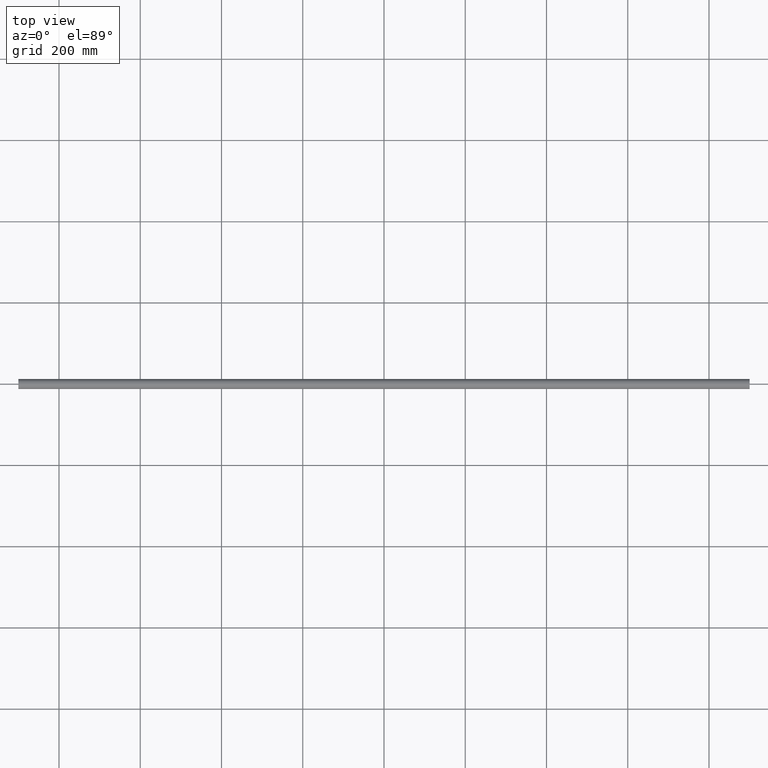
[diagram: clean part render]
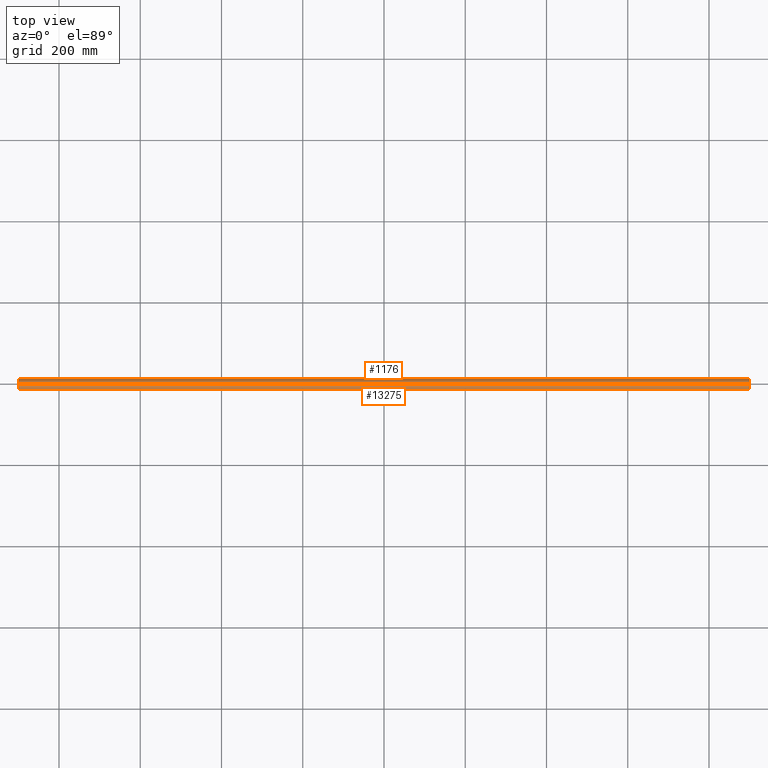
[diagram: same view with one multi-face feature highlighted, each face labeled with its STEP entity id]
A machine part, top view. The highlighted faces form ONE feature: a constant-radius fillet chain: 2 tangent blend faces with common blend radius 12.5 mm. The faces share edges in the B-rep.
Their STEP definitions:
[1] entity #13275 (Cylinder):
#15 = CARTESIAN_POINT ( 'NONE',  ( 0.8849586188828737500, -3.290362799234787700, -12.05925230465092600 ) ) ;
#76 = CARTESIAN_POINT ( 'NONE',  ( 2.562011329120410100, -2.246229744202106200, -12.29756642919713400 ) ) ;
#129 = CARTESIAN_POINT ( 'NONE',  ( -3.377732997452065800, -0.4476042234037471700, -12.49389134214153300 ) ) ;
#174 = CARTESIAN_POINT ( 'NONE',  ( 2.701931776855453800, -2.075686207071248300, -12.32785800513539200 ) ) ;
#231 = VERTEX_POINT ( 'NONE', #8184 ) ;
#285 = CARTESIAN_POINT ( 'NONE',  ( 3.377728582763545300, -0.4482571319650705500, -12.49388896063694400 ) ) ;
#344 = CARTESIAN_POINT ( 'NONE',  ( 732.5620113291202000, -2.246229744202054700, -12.29756642919714300 ) ) ;
#640 = CARTESIAN_POINT ( 'NONE',  ( -900.0000000000000000, 1.530808498934191500E-015, -12.50000000000000000 ) ) ;
#809 = CARTESIAN_POINT ( 'NONE',  ( 900.0000000000000000, 1.530808498934191500E-015, -12.50000000000000000 ) ) ;
#906 = DIRECTION ( 'NONE',  ( 0.0000000000000000000, 0.0000000000000000000, -1.000000000000000000 ) ) ;
#1103 = CARTESIAN_POINT ( 'NONE',  ( -730.8851843544657600, -3.290386587176774100, -12.05924650855003400 ) ) ;
#1252 = CARTESIAN_POINT ( 'NONE',  ( -733.2906811211503300, -0.8836557597777396900, -12.47063843226399300 ) ) ;
#1278 = CARTESIAN_POINT ( 'NONE',  ( -2.949123524426438900, -1.706430297025205400, -12.38438124661080900 ) ) ;
#1293 = ORIENTED_EDGE ( 'NONE', *, *, #6596, .F. ) ;
#1322 = CARTESIAN_POINT ( 'NONE',  ( 3.225220202861461600, -1.098761744103564400, -12.45332302889326600 ) ) ;
#1351 = CARTESIAN_POINT ( 'NONE',  ( -728.9025609335543500, -3.225774224939494900, -12.07692960344454000 ) ) ;
#1377 = CARTESIAN_POINT ( 'NONE',  ( 0.4480069142262588200, -3.377710602246548200, -12.03507891894723200 ) ) ;
#1411 = CARTESIAN_POINT ( 'NONE',  ( -729.1150413811170700, -3.290362799234757100, -12.05925230465093600 ) ) ;
#1433 = CARTESIAN_POINT ( 'NONE',  ( 2.948053334667987400, -1.708183272649644400, -12.38412960736629600 ) ) ;
#1540 = CARTESIAN_POINT ( 'NONE',  ( 733.2252202028612400, -1.098761744103555300, -12.45332302889326900 ) ) ;
#1602 = DIRECTION ( 'NONE',  ( 1.000000000000000000, 0.0000000000000000000, 0.0000000000000000000 ) ) ;
#1793 = ORIENTED_EDGE ( 'NONE', *, *, #6848, .T. ) ;
#1867 = B_SPLINE_CURVE_WITH_KNOTS ( 'NONE', 3,
 ( #13689, #4974, #5187, #8705, #13640, #8910, #5129, #6248, #7507, #6358, #10103, #15045, #13803, #8755, #14924, #2698, #6422, #7672, #9887, #6536, #15209, #6480, #2814, #344, #13979, #5236, #15155, #1540, #7724, #3988, #15102, #2868 ),
 .UNSPECIFIED., .F., .F.,
 ( 4, 2, 2, 2, 2, 2, 2, 2, 2, 2, 2, 2, 2, 2, 2, 4 ),
 ( 1.197015388918840900E-017, 0.0006675304755107222200, 0.001335060951021432500, 0.002002591426532143100, 0.002670121902042853300, 0.003337652377553563000, 0.004005182853064274100, 0.004672713328574984300, 0.005340243804085694500, 0.006007774279596404600, 0.006675304755107113900, 0.008010365706128837900, 0.008677896181639699000, 0.009345426657150558400, 0.01001295713266142100, 0.01068048760817228200 ),
 .UNSPECIFIED. ) ;
#1936 = ORIENTED_EDGE ( 'NONE', *, *, #8121, .F. ) ;
#2304 = VECTOR ( 'NONE', #3664, 1000.000000000000000 ) ;
#2558 = CARTESIAN_POINT ( 'NONE',  ( -731.5092891430319900, -3.054671048340733100, -12.12133177702797600 ) ) ;
#2672 = CARTESIAN_POINT ( 'NONE',  ( -726.6000000000000200, -0.2225510969395910800, -12.49999999999999800 ) ) ;
#2698 = CARTESIAN_POINT ( 'NONE',  ( 729.5542347389150600, -3.378089484675302700, -12.03497327294810600 ) ) ;
#2814 = CARTESIAN_POINT ( 'NONE',  ( 732.0904125409244900, -2.718083123427828400, -12.20511272832640500 ) ) ;
#2841 = CARTESIAN_POINT ( 'NONE',  ( -726.7747797971383100, -1.098761744103555300, -12.45332302889326900 ) ) ;
#2868 = CARTESIAN_POINT ( 'NONE',  ( 733.3999999999999800, 1.530817147818667500E-015, -12.50000000000000000 ) ) ;
#2905 = CARTESIAN_POINT ( 'NONE',  ( -726.6000000000000200, 1.530817147831289300E-015, -12.50000000000000000 ) ) ;
#3058 = CARTESIAN_POINT ( 'NONE',  ( 3.399999999999992400, 1.530817148184698900E-015, -12.50000000000000000 ) ) ;
#3188 = ORIENTED_EDGE ( 'NONE', *, *, #4632, .F. ) ;
#3223 = LINE ( 'NONE', #12048, #9603 ) ;
#3272 = FACE_OUTER_BOUND ( 'NONE', #13066, .T. ) ;
#3380 = DIRECTION ( 'NONE',  ( -1.000000000000000000, -0.0000000000000000000, -0.0000000000000000000 ) ) ;
#3544 = VERTEX_POINT ( 'NONE', #6428 ) ;
#3610 = CARTESIAN_POINT ( 'NONE',  ( -729.7785291907567900, -3.400096623084107000, -12.02868833097944700 ) ) ;
#3634 = VECTOR ( 'NONE', #14297, 1000.000000000000000 ) ;
#3644 = ORIENTED_EDGE ( 'NONE', *, *, #13002, .T. ) ;
#3664 = DIRECTION ( 'NONE',  ( -1.000000000000000000, -0.0000000000000000000, -0.0000000000000000000 ) ) ;
#3726 = CARTESIAN_POINT ( 'NONE',  ( -2.559440054320829500, -2.248989797497627000, -12.29704468854004600 ) ) ;
#3814 = VERTEX_POINT ( 'NONE', #3058 ) ;
#3933 = LINE ( 'NONE', #13330, #12597 ) ;
#3988 = CARTESIAN_POINT ( 'NONE',  ( 733.3777285827636700, -0.4482571319650472400, -12.49388896063694300 ) ) ;
#4019 = CARTESIAN_POINT ( 'NONE',  ( -726.6000000000000200, 1.530817147831289300E-015, -12.50000000000000000 ) ) ;
#4074 = CARTESIAN_POINT ( 'NONE',  ( -726.9451166598310000, -1.508976641703934500, -12.41029900232306300 ) ) ;
#4266 = ORIENTED_EDGE ( 'NONE', *, *, #6315, .F. ) ;
#4572 = B_SPLINE_CURVE_WITH_KNOTS ( 'NONE', 3,
 ( #12274, #9870, #9919, #1252, #6125, #12319, #11151, #4999, #13612, #6228, #7487, #9970, #2558, #12422, #1103, #9767, #11005, #3610, #12217, #1411, #1351, #5211, #6336, #12472, #11430, #13836, #4074, #2841, #14954, #12524, #2672, #4019 ),
 .UNSPECIFIED., .F., .F.,
 ( 4, 2, 2, 2, 2, 2, 2, 2, 2, 2, 2, 2, 2, 2, 2, 4 ),
 ( 1.197015388918840900E-017, 0.0006675304755107222200, 0.001335060951021432500, 0.002002591426532143100, 0.002670121902042853300, 0.003337652377553563000, 0.004005182853064274100, 0.004672713328574984300, 0.005340243804085694500, 0.006007774279596404600, 0.006675304755107113900, 0.008010365706128837900, 0.008677896181639699000, 0.009345426657150558400, 0.01001295713266142100, 0.01068048760817228200 ),
 .UNSPECIFIED. ) ;
#4632 = EDGE_CURVE ( 'NONE', #5458, #13556, #6615, .T. ) ;
#4703 = VERTEX_POINT ( 'NONE', #640 ) ;
#4974 = CARTESIAN_POINT ( 'NONE',  ( 726.5999999999999100, -0.2257922536966986700, -12.50000000000000000 ) ) ;
#4999 = CARTESIAN_POINT ( 'NONE',  ( -732.7023275773590300, -2.075249282755358600, -12.32794158140094800 ) ) ;
#5129 = CARTESIAN_POINT ( 'NONE',  ( 727.0508764755735500, -1.706430297025199200, -12.38438124661081100 ) ) ;
#5187 = CARTESIAN_POINT ( 'NONE',  ( 726.6222670025478000, -0.4476042234037524400, -12.49389134214153300 ) ) ;
#5211 = CARTESIAN_POINT ( 'NONE',  ( -728.2830839163810900, -2.968529363370429100, -12.14369076542070200 ) ) ;
#5236 = CARTESIAN_POINT ( 'NONE',  ( 732.9480533346679700, -1.708183272649670600, -12.38412960736629600 ) ) ;
#5342 = DIRECTION ( 'NONE',  ( -1.000000000000000000, -0.0000000000000000000, -0.0000000000000000000 ) ) ;
#5401 = CARTESIAN_POINT ( 'NONE',  ( 900.0000000000000000, 0.0000000000000000000, 0.0000000000000000000 ) ) ;
#5458 = VERTEX_POINT ( 'NONE', #11856 ) ;
#5830 = DIRECTION ( 'NONE',  ( 1.000000000000000000, 0.0000000000000000000, 0.0000000000000000000 ) ) ;
#6125 = CARTESIAN_POINT ( 'NONE',  ( -733.2247705063500700, -1.100213052444112300, -12.45320411249670800 ) ) ;
#6192 = CARTESIAN_POINT ( 'NONE',  ( -1.100606476932582700, -3.224536294380884200, -12.07725403179794400 ) ) ;
#6228 = CARTESIAN_POINT ( 'NONE',  ( -732.2472831817783600, -2.560938656392412100, -12.23588396395595300 ) ) ;
#6248 = CARTESIAN_POINT ( 'NONE',  ( 727.2976724226413100, -2.075249282755358600, -12.32794158140094800 ) ) ;
#6315 = EDGE_CURVE ( 'NONE', #3544, #3814, #10249, .T. ) ;
#6336 = CARTESIAN_POINT ( 'NONE',  ( -727.9095874590755100, -2.718083123427828400, -12.20511272832640500 ) ) ;
#6356 = CARTESIAN_POINT ( 'NONE',  ( 0.2214708092432787200, -3.400096623084137600, -12.02868833097944000 ) ) ;
#6358 = CARTESIAN_POINT ( 'NONE',  ( 727.7527168182214200, -2.560938656392412100, -12.23588396395595300 ) ) ;
#6392 = VERTEX_POINT ( 'NONE', #8474 ) ;
#6422 = CARTESIAN_POINT ( 'NONE',  ( 729.7755723622541400, -3.399902734060280500, -12.02874313505274300 ) ) ;
#6428 = CARTESIAN_POINT ( 'NONE',  ( 726.6000000000000200, 1.240253457150525300E-014, -12.50000000000000000 ) ) ;
#6480 = CARTESIAN_POINT ( 'NONE',  ( 731.7169160836188000, -2.968529363370429100, -12.14369076542070200 ) ) ;
#6536 = CARTESIAN_POINT ( 'NONE',  ( 730.8849586188827100, -3.290362799234757100, -12.05925230465093600 ) ) ;
#6584 = CARTESIAN_POINT ( 'NONE',  ( 3.399999999999992400, 1.530817148184698900E-015, -12.50000000000000000 ) ) ;
#6596 = EDGE_CURVE ( 'NONE', #13556, #6852, #3933, .T. ) ;
#6615 = CIRCLE ( 'NONE', #10514, 12.50000000000000000 ) ;
#6848 = EDGE_CURVE ( 'NONE', #6392, #7459, #4572, .T. ) ;
#6852 = VERTEX_POINT ( 'NONE', #7431 ) ;
#7159 = DIRECTION ( 'NONE',  ( -1.000000000000000000, -0.0000000000000000000, -0.0000000000000000000 ) ) ;
#7262 = DIRECTION ( 'NONE',  ( -1.000000000000000000, -0.0000000000000000000, -0.0000000000000000000 ) ) ;
#7431 = CARTESIAN_POINT ( 'NONE',  ( 733.3999999999999800, 1.530817147818667500E-015, -12.50000000000000000 ) ) ;
#7451 = CARTESIAN_POINT ( 'NONE',  ( -3.224770506350074700, -1.100213052444125400, -12.45320411249670300 ) ) ;
#7459 = VERTEX_POINT ( 'NONE', #2905 ) ;
#7487 = CARTESIAN_POINT ( 'NONE',  ( -732.0767785535758800, -2.701278004671885800, -12.20530089315861700 ) ) ;
#7504 = CARTESIAN_POINT ( 'NONE',  ( 2.090412540924484000, -2.718083123427878200, -12.20511272832639600 ) ) ;
#7507 = CARTESIAN_POINT ( 'NONE',  ( 727.4405599456791800, -2.248989797497584800, -12.29704468854005300 ) ) ;
#7511 = AXIS2_PLACEMENT_3D ( 'NONE', #9625, #5830, #906 ) ;
#7581 = CARTESIAN_POINT ( 'NONE',  ( 900.0000000000000000, 1.530808498934191500E-015, -12.50000000000000000 ) ) ;
#7614 = CARTESIAN_POINT ( 'NONE',  ( -0.8851843544657870300, -3.290386587176843000, -12.05924650855002200 ) ) ;
#7672 = CARTESIAN_POINT ( 'NONE',  ( 730.2214708092431000, -3.400096623084107000, -12.02868833097944700 ) ) ;
#7724 = CARTESIAN_POINT ( 'NONE',  ( 733.2899460591241900, -0.8867016201782428300, -12.47044329820943000 ) ) ;
#7864 = EDGE_CURVE ( 'NONE', #8900, #7459, #12926, .T. ) ;
#8121 = EDGE_CURVE ( 'NONE', #6392, #4703, #15500, .T. ) ;
#8184 = CARTESIAN_POINT ( 'NONE',  ( -900.0000000000000000, 0.0000000000000000000, 12.50000000000000000 ) ) ;
#8474 = CARTESIAN_POINT ( 'NONE',  ( -733.3999999999999800, 1.240253457150525300E-014, -12.50000000000000000 ) ) ;
#8488 = CYLINDRICAL_SURFACE ( 'NONE', #15809, 12.50000000000000000 ) ;
#8686 = EDGE_CURVE ( 'NONE', #231, #4703, #9153, .T. ) ;
#8700 = CARTESIAN_POINT ( 'NONE',  ( -3.399999999999992400, -2.744008533087695100E-017, -12.50000000000000000 ) ) ;
#8705 = CARTESIAN_POINT ( 'NONE',  ( 726.7093188788493300, -0.8836557597777396900, -12.47063843226399300 ) ) ;
#8753 = CARTESIAN_POINT ( 'NONE',  ( 3.054883340169163700, -1.508976641703948500, -12.41029900232305900 ) ) ;
#8755 = CARTESIAN_POINT ( 'NONE',  ( 728.8993935230673700, -3.224536294380859300, -12.07725403179794700 ) ) ;
#8803 = CARTESIAN_POINT ( 'NONE',  ( -0.2244276377459091800, -3.399902734060317000, -12.02874313505273600 ) ) ;
#8813 = B_SPLINE_CURVE_WITH_KNOTS ( 'NONE', 3,
 ( #8700, #13635, #129, #12443, #7451, #11118, #1278, #14860, #3726, #13584, #14767, #12492, #10100, #6192, #7614, #14809, #8803, #6356, #1377, #15, #9942, #14979, #7504, #76, #174, #1433, #8753, #1322, #11399, #285, #15099, #6584 ),
 .UNSPECIFIED., .F., .F.,
 ( 4, 2, 2, 2, 2, 2, 2, 2, 2, 2, 2, 2, 2, 2, 2, 4 ),
 ( 1.010852188292129100E-019, 0.0006675304755107761000, 0.001335060951021552000, 0.002002591426532328300, 0.002670121902043104000, 0.003337652377553880100, 0.004005182853064656600, 0.004672713328575432700, 0.005340243804086207900, 0.006007774279596984000, 0.006675304755107760100, 0.008010365706129314900, 0.008677896181640089300, 0.009345426657150865400, 0.01001295713266164000, 0.01068048760817241400 ),
 .UNSPECIFIED. ) ;
#8900 = VERTEX_POINT ( 'NONE', #13795 ) ;
#8910 = CARTESIAN_POINT ( 'NONE',  ( 726.9463299890194300, -1.511526726006549200, -12.40999792042050500 ) ) ;
#9153 = CIRCLE ( 'NONE', #7511, 12.50000000000000000 ) ;
#9457 = VECTOR ( 'NONE', #3380, 1000.000000000000000 ) ;
#9603 = VECTOR ( 'NONE', #7159, 1000.000000000000000 ) ;
#9625 = CARTESIAN_POINT ( 'NONE',  ( -900.0000000000000000, 0.0000000000000000000, 0.0000000000000000000 ) ) ;
#9767 = CARTESIAN_POINT ( 'NONE',  ( -730.4457652610849400, -3.378089484675302700, -12.03497327294810600 ) ) ;
#9824 = CARTESIAN_POINT ( 'NONE',  ( 900.0000000000000000, 1.530808498934191500E-015, -12.50000000000000000 ) ) ;
#9870 = CARTESIAN_POINT ( 'NONE',  ( -733.4000000000000900, -0.2257922536966986700, -12.50000000000000000 ) ) ;
#9887 = CARTESIAN_POINT ( 'NONE',  ( 730.4480069142263100, -3.377710602246517100, -12.03507891894724400 ) ) ;
#9919 = CARTESIAN_POINT ( 'NONE',  ( -733.3777329974518600, -0.4476042234037524400, -12.49389134214153300 ) ) ;
#9942 = CARTESIAN_POINT ( 'NONE',  ( 1.097439066445788900, -3.225774224939502500, -12.07692960344454200 ) ) ;
#9970 = CARTESIAN_POINT ( 'NONE',  ( -731.7054526404524500, -2.949803944381664200, -12.14763061015492900 ) ) ;
#10061 = ORIENTED_EDGE ( 'NONE', *, *, #15952, .T. ) ;
#10100 = CARTESIAN_POINT ( 'NONE',  ( -1.509289143032031400, -3.054671048340752200, -12.12133177702796700 ) ) ;
#10103 = CARTESIAN_POINT ( 'NONE',  ( 727.9232214464243500, -2.701278004671885800, -12.20530089315861700 ) ) ;
#10249 = LINE ( 'NONE', #9824, #2304 ) ;
#10276 = DIRECTION ( 'NONE',  ( 0.0000000000000000000, 0.0000000000000000000, -1.000000000000000000 ) ) ;
#10514 = AXIS2_PLACEMENT_3D ( 'NONE', #15317, #1602, #10276 ) ;
#11005 = CARTESIAN_POINT ( 'NONE',  ( -730.2244276377458600, -3.399902734060280500, -12.02874313505274300 ) ) ;
#11118 = CARTESIAN_POINT ( 'NONE',  ( -3.053670010980493300, -1.511526726006569500, -12.40999792042050100 ) ) ;
#11151 = CARTESIAN_POINT ( 'NONE',  ( -732.9491235244265700, -1.706430297025199200, -12.38438124661081100 ) ) ;
#11251 = ORIENTED_EDGE ( 'NONE', *, *, #7864, .F. ) ;
#11399 = CARTESIAN_POINT ( 'NONE',  ( 3.289946059124467600, -0.8867016201782704800, -12.47044329820943000 ) ) ;
#11430 = CARTESIAN_POINT ( 'NONE',  ( -727.2980682231448100, -2.075686207071268300, -12.32785800513539000 ) ) ;
#11856 = CARTESIAN_POINT ( 'NONE',  ( 900.0000000000000000, 0.0000000000000000000, 12.50000000000000000 ) ) ;
#12048 = CARTESIAN_POINT ( 'NONE',  ( 900.0000000000000000, 0.0000000000000000000, 12.50000000000000000 ) ) ;
#12217 = CARTESIAN_POINT ( 'NONE',  ( -729.5519930857736900, -3.377710602246517100, -12.03507891894724400 ) ) ;
#12274 = CARTESIAN_POINT ( 'NONE',  ( -733.3999999999999800, 1.240253457150525300E-014, -12.50000000000000000 ) ) ;
#12319 = CARTESIAN_POINT ( 'NONE',  ( -733.0536700109806800, -1.511526726006549200, -12.40999792042050500 ) ) ;
#12422 = CARTESIAN_POINT ( 'NONE',  ( -731.1006064769324000, -3.224536294380859300, -12.07725403179794700 ) ) ;
#12443 = CARTESIAN_POINT ( 'NONE',  ( -3.290681121150606200, -0.8836557597777408000, -12.47063843226399100 ) ) ;
#12472 = CARTESIAN_POINT ( 'NONE',  ( -727.4379886708795800, -2.246229744202054700, -12.29756642919714300 ) ) ;
#12492 = CARTESIAN_POINT ( 'NONE',  ( -1.705452640452512500, -2.949803944381704600, -12.14763061015491600 ) ) ;
#12524 = CARTESIAN_POINT ( 'NONE',  ( -726.6222714172363300, -0.4482571319650472400, -12.49388896063694300 ) ) ;
#12558 = ORIENTED_EDGE ( 'NONE', *, *, #8686, .T. ) ;
#12597 = VECTOR ( 'NONE', #7262, 1000.000000000000000 ) ;
#12926 = LINE ( 'NONE', #809, #9457 ) ;
#12953 = CARTESIAN_POINT ( 'NONE',  ( 900.0000000000000000, 1.530808498934191500E-015, -12.50000000000000000 ) ) ;
#13002 = EDGE_CURVE ( 'NONE', #3544, #6852, #1867, .T. ) ;
#13066 = EDGE_LOOP ( 'NONE', ( #1293, #3188, #10061, #12558, #1936, #1793, #11251, #14020, #4266, #3644 ) ) ;
#13275 = ADVANCED_FACE ( 'NONE', ( #3272 ), #8488, .T. ) ;
#13330 = CARTESIAN_POINT ( 'NONE',  ( 900.0000000000000000, 1.530808498934191500E-015, -12.50000000000000000 ) ) ;
#13556 = VERTEX_POINT ( 'NONE', #7581 ) ;
#13584 = CARTESIAN_POINT ( 'NONE',  ( -2.247283181778619600, -2.560938656392455700, -12.23588396395593800 ) ) ;
#13612 = CARTESIAN_POINT ( 'NONE',  ( -732.5594400543210400, -2.248989797497584800, -12.29704468854005300 ) ) ;
#13635 = CARTESIAN_POINT ( 'NONE',  ( -3.399999999999991900, -0.2257922536967014400, -12.50000000000000000 ) ) ;
#13640 = CARTESIAN_POINT ( 'NONE',  ( 726.7752294936501600, -1.100213052444112300, -12.45320411249670800 ) ) ;
#13689 = CARTESIAN_POINT ( 'NONE',  ( 726.6000000000000200, 1.240253457150525300E-014, -12.50000000000000000 ) ) ;
#13795 = CARTESIAN_POINT ( 'NONE',  ( -3.399999999999992400, -2.744008533087695100E-017, -12.50000000000000000 ) ) ;
#13803 = CARTESIAN_POINT ( 'NONE',  ( 728.4907108569680100, -3.054671048340733100, -12.12133177702797600 ) ) ;
#13836 = CARTESIAN_POINT ( 'NONE',  ( -727.0519466653322500, -1.708183272649670600, -12.38412960736629600 ) ) ;
#13979 = CARTESIAN_POINT ( 'NONE',  ( 732.7019317768555300, -2.075686207071268300, -12.32785800513539000 ) ) ;
#14020 = ORIENTED_EDGE ( 'NONE', *, *, #14341, .T. ) ;
#14184 = DIRECTION ( 'NONE',  ( 0.0000000000000000000, 0.0000000000000000000, 1.000000000000000000 ) ) ;
#14297 = DIRECTION ( 'NONE',  ( -1.000000000000000000, -0.0000000000000000000, -0.0000000000000000000 ) ) ;
#14341 = EDGE_CURVE ( 'NONE', #8900, #3814, #8813, .T. ) ;
#14767 = CARTESIAN_POINT ( 'NONE',  ( -2.076778553575694600, -2.701278004671927600, -12.20530089315860600 ) ) ;
#14809 = CARTESIAN_POINT ( 'NONE',  ( -0.4457652610848885600, -3.378089484675354600, -12.03497327294809200 ) ) ;
#14860 = CARTESIAN_POINT ( 'NONE',  ( -2.702327577358870400, -2.075249282755371900, -12.32794158140094100 ) ) ;
#14924 = CARTESIAN_POINT ( 'NONE',  ( 729.1148156455340100, -3.290386587176774100, -12.05924650855003400 ) ) ;
#14954 = CARTESIAN_POINT ( 'NONE',  ( -726.7100539408754700, -0.8867016201782428300, -12.47044329820943000 ) ) ;
#14979 = CARTESIAN_POINT ( 'NONE',  ( 1.716916083618988300, -2.968529363370419700, -12.14369076542070900 ) ) ;
#15045 = CARTESIAN_POINT ( 'NONE',  ( 728.2945473595474400, -2.949803944381664200, -12.14763061015492900 ) ) ;
#15099 = CARTESIAN_POINT ( 'NONE',  ( 3.399999999999991900, -0.2225510969395931600, -12.49999999999999600 ) ) ;
#15102 = CARTESIAN_POINT ( 'NONE',  ( 733.3999999999999800, -0.2225510969395910800, -12.49999999999999800 ) ) ;
#15155 = CARTESIAN_POINT ( 'NONE',  ( 733.0548833401691100, -1.508976641703934500, -12.41029900232306300 ) ) ;
#15209 = CARTESIAN_POINT ( 'NONE',  ( 731.0974390664457600, -3.225774224939494900, -12.07692960344454000 ) ) ;
#15317 = CARTESIAN_POINT ( 'NONE',  ( 900.0000000000000000, 0.0000000000000000000, 0.0000000000000000000 ) ) ;
#15500 = LINE ( 'NONE', #12953, #3634 ) ;
#15809 = AXIS2_PLACEMENT_3D ( 'NONE', #5401, #5342, #14184 ) ;
#15952 = EDGE_CURVE ( 'NONE', #5458, #231, #3223, .T. ) ;
[2] entity #1176 (Cylinder):
#146 = CARTESIAN_POINT ( 'NONE',  ( -0.2234455537290544500, 3.400048205355202600, -12.02870201658427100 ) ) ;
#199 = CARTESIAN_POINT ( 'NONE',  ( -2.701264361461528800, 2.076693513877967400, -12.32770492924914800 ) ) ;
#231 = VERTEX_POINT ( 'NONE', #8184 ) ;
#366 = DIRECTION ( 'NONE',  ( 0.0000000000000000000, 0.0000000000000000000, -1.000000000000000000 ) ) ;
#484 = CARTESIAN_POINT ( 'NONE',  ( 727.9247742211100600, 2.702454775431625000, -12.20503821577511700 ) ) ;
#529 = ORIENTED_EDGE ( 'NONE', *, *, #11773, .F. ) ;
#540 = CARTESIAN_POINT ( 'NONE',  ( 726.7098464286035600, 0.8858490098629775400, -12.47049837081998000 ) ) ;
#627 = CARTESIAN_POINT ( 'NONE',  ( -729.1146337435513900, 3.290199395220138700, -12.05929658612623900 ) ) ;
#640 = CARTESIAN_POINT ( 'NONE',  ( -900.0000000000000000, 1.530808498934191500E-015, -12.50000000000000000 ) ) ;
#673 = CARTESIAN_POINT ( 'NONE',  ( -731.5088494221084800, 3.054930781525983600, -12.12126751630187900 ) ) ;
#809 = CARTESIAN_POINT ( 'NONE',  ( 900.0000000000000000, 1.530808498934191500E-015, -12.50000000000000000 ) ) ;
#1099 = CARTESIAN_POINT ( 'NONE',  ( 3.378280758540317000, 0.4448867375077689100, -12.49403760771221700 ) ) ;
#1176 = ADVANCED_FACE ( 'NONE', ( #7477 ), #15377, .T. ) ;
#1245 = CARTESIAN_POINT ( 'NONE',  ( 2.701596913804636700, 2.076183846916808100, -12.32778155075019200 ) ) ;
#1299 = CARTESIAN_POINT ( 'NONE',  ( -1.099029707848890400, 3.225114317319355700, -12.07710089060664400 ) ) ;
#1460 = CARTESIAN_POINT ( 'NONE',  ( -900.0000000000000000, 0.0000000000000000000, 0.0000000000000000000 ) ) ;
#1561 = CARTESIAN_POINT ( 'NONE',  ( 729.7765544462710100, 3.400048205355171500, -12.02870201658427800 ) ) ;
#1728 = CARTESIAN_POINT ( 'NONE',  ( 733.3999999999999800, 1.530817147818667500E-015, -12.50000000000000000 ) ) ;
#1754 = CARTESIAN_POINT ( 'NONE',  ( -726.7098970917935500, 0.8865257729732174400, -12.47048403254628500 ) ) ;
#1784 = CARTESIAN_POINT ( 'NONE',  ( 726.6000000000000200, 0.2257309346313073600, -12.49999999999999800 ) ) ;
#1932 = AXIS2_PLACEMENT_3D ( 'NONE', #1460, #6381, #366 ) ;
#2304 = VECTOR ( 'NONE', #3664, 1000.000000000000000 ) ;
#2471 = B_SPLINE_CURVE_WITH_KNOTS ( 'NONE', 3,
 ( #1728, #4228, #15278, #12694, #12861, #10290, #2995, #5427, #2834, #3051, #15228, #11591, #5317, #14099, #14047, #6611, #8023, #1561, #2890, #11481, #15177, #7915, #11690, #484, #11536, #9167, #10405, #6725, #7970, #4283, #540, #9223, #1784, #15389 ),
 .UNSPECIFIED., .F., .F.,
 ( 4, 2, 2, 2, 2, 2, 2, 2, 2, 2, 2, 2, 2, 2, 2, 2, 4 ),
 ( 0.01068048760817228200, 0.01134783680047156600, 0.01201518599277084900, 0.01268253518507013100, 0.01334988437736941500, 0.01401723356966869800, 0.01468458276196798000, 0.01535193195426726300, 0.01601928114656654700, 0.01668663033886583200, 0.01735397953116511400, 0.01802132872346439600, 0.01868867791576368100, 0.01935602710806296300, 0.02002337630036224400, 0.02069072549266153000, 0.02135807468496081100 ),
 .UNSPECIFIED. ) ;
#2694 = CIRCLE ( 'NONE', #8771, 12.50000000000000000 ) ;
#2788 = EDGE_CURVE ( 'NONE', #7459, #6392, #12650, .T. ) ;
#2834 = CARTESIAN_POINT ( 'NONE',  ( 732.5616062947976800, 2.246627044520512300, -12.29748777373637700 ) ) ;
#2890 = CARTESIAN_POINT ( 'NONE',  ( 729.5551853612123500, 3.378139508022326000, -12.03495784066947700 ) ) ;
#2905 = CARTESIAN_POINT ( 'NONE',  ( -726.6000000000000200, 1.530817147831289300E-015, -12.50000000000000000 ) ) ;
#2995 = CARTESIAN_POINT ( 'NONE',  ( 732.9483656953229900, 1.707719232637206600, -12.38420091696254300 ) ) ;
#3051 = CARTESIAN_POINT ( 'NONE',  ( 732.2481390314258100, 2.560279434377374500, -12.23603317420604600 ) ) ;
#3058 = CARTESIAN_POINT ( 'NONE',  ( 3.399999999999992400, 1.530817148184698900E-015, -12.50000000000000000 ) ) ;
#3074 = CARTESIAN_POINT ( 'NONE',  ( -727.2984030861954400, 2.076183846916757900, -12.32778155075019700 ) ) ;
#3134 = CARTESIAN_POINT ( 'NONE',  ( -726.6000000000001400, 0.2224906580846630300, -12.50000000000000000 ) ) ;
#3223 = LINE ( 'NONE', #12048, #9603 ) ;
#3239 = CARTESIAN_POINT ( 'NONE',  ( -731.0990297078489000, 3.225114317319322000, -12.07710089060665500 ) ) ;
#3380 = DIRECTION ( 'NONE',  ( -1.000000000000000000, -0.0000000000000000000, -0.0000000000000000000 ) ) ;
#3544 = VERTEX_POINT ( 'NONE', #6428 ) ;
#3564 = ORIENTED_EDGE ( 'NONE', *, *, #6315, .T. ) ;
#3634 = VECTOR ( 'NONE', #14297, 1000.000000000000000 ) ;
#3654 = CARTESIAN_POINT ( 'NONE',  ( 3.399999999999991900, 0.2224906580846645300, -12.50000000000000400 ) ) ;
#3664 = DIRECTION ( 'NONE',  ( -1.000000000000000000, -0.0000000000000000000, -0.0000000000000000000 ) ) ;
#3797 = CARTESIAN_POINT ( 'NONE',  ( 0.8853662564486788300, 3.290199395220190200, -12.05929658612622500 ) ) ;
#3814 = VERTEX_POINT ( 'NONE', #3058 ) ;
#3847 = CARTESIAN_POINT ( 'NONE',  ( 1.098672814191161700, 3.225401577627999800, -12.07703201683448100 ) ) ;
#3933 = LINE ( 'NONE', #13330, #12597 ) ;
#3948 = CARTESIAN_POINT ( 'NONE',  ( 0.4500052350430814300, 3.377392597374352200, -12.03516786154908000 ) ) ;
#4011 = CARTESIAN_POINT ( 'NONE',  ( -1.508849422108631300, 3.054930781526017800, -12.12126751630187400 ) ) ;
#4228 = CARTESIAN_POINT ( 'NONE',  ( 733.4000000000002000, 0.2224906580846630300, -12.50000000000000000 ) ) ;
#4249 = CARTESIAN_POINT ( 'NONE',  ( -727.4383937052025400, 2.246627044520512300, -12.29748777373637700 ) ) ;
#4254 = B_SPLINE_CURVE_WITH_KNOTS ( 'NONE', 3,
 ( #6909, #3654, #1099, #12266, #13452, #13501, #9761, #1245, #5039, #13661, #15064, #13828, #15007, #3847, #3797, #3948, #12573, #146, #12414, #13770, #1299, #4011, #6267, #6504, #8721, #12515, #199, #6441, #7580, #10125, #6379, #11419, #14886, #7525 ),
 .UNSPECIFIED., .F., .F.,
 ( 4, 2, 2, 2, 2, 2, 2, 2, 2, 2, 2, 2, 2, 2, 2, 2, 4 ),
 ( 0.01068048760817241400, 0.01134783680047170500, 0.01201518599277099700, 0.01268253518507028700, 0.01334988437736957900, 0.01401723356966887200, 0.01468458276196816200, 0.01535193195426745400, 0.01601928114656674500, 0.01668663033886603700, 0.01735397953116532600, 0.01802132872346461800, 0.01868867791576391000, 0.01935602710806320200, 0.02002337630036249400, 0.02069072549266178600, 0.02135807468496107900 ),
 .UNSPECIFIED. ) ;
#4283 = CARTESIAN_POINT ( 'NONE',  ( 726.7761616718569300, 1.102753275414778200, -12.45296436855722700 ) ) ;
#4365 = CARTESIAN_POINT ( 'NONE',  ( -732.7012643614615400, 2.076693513877929200, -12.32770492924915700 ) ) ;
#4417 = CARTESIAN_POINT ( 'NONE',  ( -730.2234455537291100, 3.400048205355171500, -12.02870201658427800 ) ) ;
#4468 = CARTESIAN_POINT ( 'NONE',  ( -727.7518609685740800, 2.560279434377374500, -12.23603317420604600 ) ) ;
#4703 = VERTEX_POINT ( 'NONE', #640 ) ;
#5039 = CARTESIAN_POINT ( 'NONE',  ( 2.561606294797433400, 2.246627044520570900, -12.29748777373636400 ) ) ;
#5125 = ORIENTED_EDGE ( 'NONE', *, *, #15952, .F. ) ;
#5317 = CARTESIAN_POINT ( 'NONE',  ( 731.5128177256832500, 3.053142613515797500, -12.12172586120244800 ) ) ;
#5427 = CARTESIAN_POINT ( 'NONE',  ( 732.7015969138046800, 2.076183846916757900, -12.32778155075019700 ) ) ;
#5444 = CARTESIAN_POINT ( 'NONE',  ( -733.3777370699434600, 0.4480304431356896300, -12.49389157976499500 ) ) ;
#5458 = VERTEX_POINT ( 'NONE', #11856 ) ;
#5502 = CARTESIAN_POINT ( 'NONE',  ( -729.5499947649567500, 3.377392597374309100, -12.03516786154909300 ) ) ;
#5560 = CARTESIAN_POINT ( 'NONE',  ( -732.0752257788898300, 2.702454775431625000, -12.20503821577511700 ) ) ;
#5614 = CARTESIAN_POINT ( 'NONE',  ( -733.2901535713963300, 0.8858490098629775400, -12.47049837081998000 ) ) ;
#5666 = CARTESIAN_POINT ( 'NONE',  ( -727.9254591372383600, 2.702775320397728700, -12.20495341510524800 ) ) ;
#6222 = DIRECTION ( 'NONE',  ( 0.0000000000000000000, 0.0000000000000000000, -1.000000000000000000 ) ) ;
#6267 = CARTESIAN_POINT ( 'NONE',  ( -1.704100421879116500, 2.950570385327915700, -12.14744228481906600 ) ) ;
#6315 = EDGE_CURVE ( 'NONE', #3544, #3814, #10249, .T. ) ;
#6379 = CARTESIAN_POINT ( 'NONE',  ( -3.290153571396320100, 0.8858490098629764300, -12.47049837081998000 ) ) ;
#6381 = DIRECTION ( 'NONE',  ( 1.000000000000000000, 0.0000000000000000000, 0.0000000000000000000 ) ) ;
#6392 = VERTEX_POINT ( 'NONE', #8474 ) ;
#6428 = CARTESIAN_POINT ( 'NONE',  ( 726.6000000000000200, 1.240253457150525300E-014, -12.50000000000000000 ) ) ;
#6441 = CARTESIAN_POINT ( 'NONE',  ( -2.948822403490609200, 1.707024174918691400, -12.38430592481708800 ) ) ;
#6504 = CARTESIAN_POINT ( 'NONE',  ( -2.075225778890010400, 2.702454775431600600, -12.20503821577512400 ) ) ;
#6596 = EDGE_CURVE ( 'NONE', #13556, #6852, #3933, .T. ) ;
#6611 = CARTESIAN_POINT ( 'NONE',  ( 730.4500052350432500, 3.377392597374309100, -12.03516786154909300 ) ) ;
#6725 = CARTESIAN_POINT ( 'NONE',  ( 727.0511775965094300, 1.707024174918659000, -12.38430592481709500 ) ) ;
#6752 = CARTESIAN_POINT ( 'NONE',  ( -728.4871822743166400, 3.053142613515797500, -12.12172586120244800 ) ) ;
#6852 = VERTEX_POINT ( 'NONE', #7431 ) ;
#6909 = CARTESIAN_POINT ( 'NONE',  ( 3.399999999999992400, 1.530817148184698900E-015, -12.50000000000000000 ) ) ;
#6919 = CARTESIAN_POINT ( 'NONE',  ( -730.4448146387876500, 3.378139508022326000, -12.03495784066947700 ) ) ;
#7159 = DIRECTION ( 'NONE',  ( -1.000000000000000000, -0.0000000000000000000, -0.0000000000000000000 ) ) ;
#7262 = DIRECTION ( 'NONE',  ( -1.000000000000000000, -0.0000000000000000000, -0.0000000000000000000 ) ) ;
#7431 = CARTESIAN_POINT ( 'NONE',  ( 733.3999999999999800, 1.530817147818667500E-015, -12.50000000000000000 ) ) ;
#7459 = VERTEX_POINT ( 'NONE', #2905 ) ;
#7477 = FACE_OUTER_BOUND ( 'NONE', #15803, .T. ) ;
#7525 = CARTESIAN_POINT ( 'NONE',  ( -3.399999999999992400, -2.744008533087695100E-017, -12.50000000000000000 ) ) ;
#7580 = CARTESIAN_POINT ( 'NONE',  ( -3.053242200727052800, 1.512253423253414800, -12.40989427573226000 ) ) ;
#7581 = CARTESIAN_POINT ( 'NONE',  ( 900.0000000000000000, 1.530808498934191500E-015, -12.50000000000000000 ) ) ;
#7864 = EDGE_CURVE ( 'NONE', #8900, #7459, #12926, .T. ) ;
#7915 = CARTESIAN_POINT ( 'NONE',  ( 728.4911505778914000, 3.054930781525983600, -12.12126751630187900 ) ) ;
#7970 = CARTESIAN_POINT ( 'NONE',  ( 726.9467577992728600, 1.512253423253397500, -12.40989427573226300 ) ) ;
#8023 = CARTESIAN_POINT ( 'NONE',  ( 730.2249101616984000, 3.399951636918531000, -12.02872931232275500 ) ) ;
#8107 = CARTESIAN_POINT ( 'NONE',  ( -726.7749251437177200, 1.099126717669559800, -12.45328610117817200 ) ) ;
#8121 = EDGE_CURVE ( 'NONE', #6392, #4703, #15500, .T. ) ;
#8156 = CARTESIAN_POINT ( 'NONE',  ( -729.7750898383016000, 3.399951636918531000, -12.02872931232275500 ) ) ;
#8184 = CARTESIAN_POINT ( 'NONE',  ( -900.0000000000000000, 0.0000000000000000000, 12.50000000000000000 ) ) ;
#8474 = CARTESIAN_POINT ( 'NONE',  ( -733.3999999999999800, 1.240253457150525300E-014, -12.50000000000000000 ) ) ;
#8721 = CARTESIAN_POINT ( 'NONE',  ( -2.246941888827491700, 2.561224429050343000, -12.23582231181097400 ) ) ;
#8771 = AXIS2_PLACEMENT_3D ( 'NONE', #11146, #13557, #6222 ) ;
#8900 = VERTEX_POINT ( 'NONE', #13795 ) ;
#9167 = CARTESIAN_POINT ( 'NONE',  ( 727.4410707372538800, 2.249555390736871300, -12.29693940646135500 ) ) ;
#9223 = CARTESIAN_POINT ( 'NONE',  ( 726.6222629300564200, 0.4480304431356896300, -12.49389157976499500 ) ) ;
#9250 = CARTESIAN_POINT ( 'NONE',  ( -726.9450387026383900, 1.508773953162621000, -12.41031890877710200 ) ) ;
#9397 = CARTESIAN_POINT ( 'NONE',  ( -732.2469418888275600, 2.561224429050289700, -12.23582231181098500 ) ) ;
#9445 = EDGE_CURVE ( 'NONE', #6852, #3544, #2471, .T. ) ;
#9457 = VECTOR ( 'NONE', #3380, 1000.000000000000000 ) ;
#9603 = VECTOR ( 'NONE', #7159, 1000.000000000000000 ) ;
#9761 = CARTESIAN_POINT ( 'NONE',  ( 2.948365695323058100, 1.707719232637260100, -12.38420091696253800 ) ) ;
#9824 = CARTESIAN_POINT ( 'NONE',  ( 900.0000000000000000, 1.530808498934191500E-015, -12.50000000000000000 ) ) ;
#9939 = DIRECTION ( 'NONE',  ( -1.000000000000000000, -0.0000000000000000000, -0.0000000000000000000 ) ) ;
#10001 = ORIENTED_EDGE ( 'NONE', *, *, #13637, .T. ) ;
#10125 = CARTESIAN_POINT ( 'NONE',  ( -3.223838328143052000, 1.102753275414793700, -12.45296436855722900 ) ) ;
#10249 = LINE ( 'NONE', #9824, #2304 ) ;
#10290 = CARTESIAN_POINT ( 'NONE',  ( 733.0549612973612700, 1.508773953162621000, -12.41031890877710200 ) ) ;
#10405 = CARTESIAN_POINT ( 'NONE',  ( 727.2987356385386900, 2.076693513877929200, -12.32770492924915700 ) ) ;
#10420 = CIRCLE ( 'NONE', #1932, 12.50000000000000000 ) ;
#10429 = CARTESIAN_POINT ( 'NONE',  ( -727.0516343046769000, 1.707719232637206600, -12.38420091696254300 ) ) ;
#10628 = CARTESIAN_POINT ( 'NONE',  ( -733.0532422007272500, 1.512253423253397500, -12.40989427573226300 ) ) ;
#10787 = AXIS2_PLACEMENT_3D ( 'NONE', #14764, #9939, #12287 ) ;
#10903 = ORIENTED_EDGE ( 'NONE', *, *, #2788, .T. ) ;
#11146 = CARTESIAN_POINT ( 'NONE',  ( 900.0000000000000000, 0.0000000000000000000, 0.0000000000000000000 ) ) ;
#11419 = CARTESIAN_POINT ( 'NONE',  ( -3.377737069943546300, 0.4480304431356871300, -12.49389157976499300 ) ) ;
#11481 = CARTESIAN_POINT ( 'NONE',  ( 729.1179449852576200, 3.291149578720000200, -12.05903691066762600 ) ) ;
#11536 = CARTESIAN_POINT ( 'NONE',  ( 727.7530581111726600, 2.561224429050289700, -12.23582231181098500 ) ) ;
#11591 = CARTESIAN_POINT ( 'NONE',  ( 731.7076978998460400, 2.948301563049304400, -12.14797926367844400 ) ) ;
#11659 = CARTESIAN_POINT ( 'NONE',  ( -726.6000000000000200, 1.530817147831289300E-015, -12.50000000000000000 ) ) ;
#11690 = CARTESIAN_POINT ( 'NONE',  ( 728.2958995781210700, 2.950570385327931700, -12.14744228481905900 ) ) ;
#11719 = CARTESIAN_POINT ( 'NONE',  ( -728.2923021001538500, 2.948301563049304400, -12.14797926367844400 ) ) ;
#11762 = CARTESIAN_POINT ( 'NONE',  ( -731.7041004218791600, 2.950570385327931700, -12.14744228481905900 ) ) ;
#11773 = EDGE_CURVE ( 'NONE', #13556, #5458, #2694, .T. ) ;
#11855 = CARTESIAN_POINT ( 'NONE',  ( -733.2238383281429600, 1.102753275414778200, -12.45296436855722700 ) ) ;
#11856 = CARTESIAN_POINT ( 'NONE',  ( 900.0000000000000000, 0.0000000000000000000, 12.50000000000000000 ) ) ;
#12048 = CARTESIAN_POINT ( 'NONE',  ( 900.0000000000000000, 0.0000000000000000000, 12.50000000000000000 ) ) ;
#12266 = CARTESIAN_POINT ( 'NONE',  ( 3.290102908206406600, 0.8865257729732284300, -12.47048403254627900 ) ) ;
#12287 = DIRECTION ( 'NONE',  ( 0.0000000000000000000, 0.0000000000000000000, 1.000000000000000000 ) ) ;
#12414 = CARTESIAN_POINT ( 'NONE',  ( -0.4448146387875809800, 3.378139508022354000, -12.03495784066946900 ) ) ;
#12515 = CARTESIAN_POINT ( 'NONE',  ( -2.558929262746111500, 2.249555390736924100, -12.29693940646134800 ) ) ;
#12573 = CARTESIAN_POINT ( 'NONE',  ( 0.2249101616983705800, 3.399951636918566100, -12.02872931232274700 ) ) ;
#12578 = ORIENTED_EDGE ( 'NONE', *, *, #7864, .T. ) ;
#12597 = VECTOR ( 'NONE', #7262, 1000.000000000000000 ) ;
#12650 = B_SPLINE_CURVE_WITH_KNOTS ( 'NONE', 3,
 ( #11659, #3134, #15465, #1754, #8107, #9250, #10429, #3074, #4249, #4468, #5666, #11719, #6752, #13053, #627, #5502, #8156, #4417, #6919, #14076, #3239, #673, #11762, #5560, #9397, #14190, #4365, #12995, #10628, #11855, #5614, #5444, #14236, #15359 ),
 .UNSPECIFIED., .F., .F.,
 ( 4, 2, 2, 2, 2, 2, 2, 2, 2, 2, 2, 2, 2, 2, 2, 2, 4 ),
 ( 0.01068048760817228200, 0.01134783680047156600, 0.01201518599277084900, 0.01268253518507013100, 0.01334988437736941500, 0.01401723356966869800, 0.01468458276196798000, 0.01535193195426726300, 0.01601928114656654700, 0.01668663033886583200, 0.01735397953116511400, 0.01802132872346439600, 0.01868867791576368100, 0.01935602710806296300, 0.02002337630036224400, 0.02069072549266153000, 0.02135807468496081100 ),
 .UNSPECIFIED. ) ;
#12694 = CARTESIAN_POINT ( 'NONE',  ( 733.2901029082065600, 0.8865257729732174400, -12.47048403254628500 ) ) ;
#12861 = CARTESIAN_POINT ( 'NONE',  ( 733.2250748562821600, 1.099126717669559800, -12.45328610117817200 ) ) ;
#12926 = LINE ( 'NONE', #809, #9457 ) ;
#12953 = CARTESIAN_POINT ( 'NONE',  ( 900.0000000000000000, 1.530808498934191500E-015, -12.50000000000000000 ) ) ;
#12995 = CARTESIAN_POINT ( 'NONE',  ( -732.9488224034905700, 1.707024174918659000, -12.38430592481709500 ) ) ;
#13053 = CARTESIAN_POINT ( 'NONE',  ( -728.9013271858090100, 3.225401577627969600, -12.07703201683448800 ) ) ;
#13330 = CARTESIAN_POINT ( 'NONE',  ( 900.0000000000000000, 1.530808498934191500E-015, -12.50000000000000000 ) ) ;
#13452 = CARTESIAN_POINT ( 'NONE',  ( 3.225074856282220500, 1.099126717669581600, -12.45328610117817400 ) ) ;
#13501 = CARTESIAN_POINT ( 'NONE',  ( 3.054961297361531000, 1.508773953162645400, -12.41031890877710000 ) ) ;
#13556 = VERTEX_POINT ( 'NONE', #7581 ) ;
#13557 = DIRECTION ( 'NONE',  ( 1.000000000000000000, 0.0000000000000000000, 0.0000000000000000000 ) ) ;
#13602 = ORIENTED_EDGE ( 'NONE', *, *, #14160, .T. ) ;
#13637 = EDGE_CURVE ( 'NONE', #4703, #231, #10420, .T. ) ;
#13661 = CARTESIAN_POINT ( 'NONE',  ( 2.248139031426005000, 2.560279434377431300, -12.23603317420603200 ) ) ;
#13770 = CARTESIAN_POINT ( 'NONE',  ( -0.8820550147423930100, 3.291149578720029600, -12.05903691066761500 ) ) ;
#13795 = CARTESIAN_POINT ( 'NONE',  ( -3.399999999999992400, -2.744008533087695100E-017, -12.50000000000000000 ) ) ;
#13828 = CARTESIAN_POINT ( 'NONE',  ( 1.707697899846061000, 2.948301563049320800, -12.14797926367843800 ) ) ;
#14047 = CARTESIAN_POINT ( 'NONE',  ( 730.8853662564488300, 3.290199395220138700, -12.05929658612623900 ) ) ;
#14076 = CARTESIAN_POINT ( 'NONE',  ( -730.8820550147423800, 3.291149578720000200, -12.05903691066762600 ) ) ;
#14099 = CARTESIAN_POINT ( 'NONE',  ( 731.0986728141909900, 3.225401577627969600, -12.07703201683448800 ) ) ;
#14160 = EDGE_CURVE ( 'NONE', #3814, #8900, #4254, .T. ) ;
#14190 = CARTESIAN_POINT ( 'NONE',  ( -732.5589292627461200, 2.249555390736871300, -12.29693940646135500 ) ) ;
#14236 = CARTESIAN_POINT ( 'NONE',  ( -733.3999999999998600, 0.2257309346313073600, -12.49999999999999800 ) ) ;
#14297 = DIRECTION ( 'NONE',  ( -1.000000000000000000, -0.0000000000000000000, -0.0000000000000000000 ) ) ;
#14764 = CARTESIAN_POINT ( 'NONE',  ( 900.0000000000000000, 0.0000000000000000000, 0.0000000000000000000 ) ) ;
#14886 = CARTESIAN_POINT ( 'NONE',  ( -3.399999999999992800, 0.2257309346313102800, -12.50000000000000000 ) ) ;
#15007 = CARTESIAN_POINT ( 'NONE',  ( 1.512817725683328400, 3.053142613515825100, -12.12172586120244400 ) ) ;
#15064 = CARTESIAN_POINT ( 'NONE',  ( 2.074540862761344900, 2.702775320397744700, -12.20495341510524800 ) ) ;
#15177 = CARTESIAN_POINT ( 'NONE',  ( 728.9009702921511000, 3.225114317319322000, -12.07710089060665500 ) ) ;
#15228 = CARTESIAN_POINT ( 'NONE',  ( 732.0745408627613000, 2.702775320397728700, -12.20495341510524800 ) ) ;
#15278 = CARTESIAN_POINT ( 'NONE',  ( 733.3782807585404300, 0.4448867375077629700, -12.49403760771221900 ) ) ;
#15354 = ORIENTED_EDGE ( 'NONE', *, *, #6596, .T. ) ;
#15359 = CARTESIAN_POINT ( 'NONE',  ( -733.3999999999999800, 1.240253457150525300E-014, -12.50000000000000000 ) ) ;
#15377 = CYLINDRICAL_SURFACE ( 'NONE', #10787, 12.50000000000000000 ) ;
#15389 = CARTESIAN_POINT ( 'NONE',  ( 726.6000000000000200, 1.240253457150525300E-014, -12.50000000000000000 ) ) ;
#15394 = ORIENTED_EDGE ( 'NONE', *, *, #9445, .T. ) ;
#15465 = CARTESIAN_POINT ( 'NONE',  ( -726.6217192414598000, 0.4448867375077629700, -12.49403760771221900 ) ) ;
#15500 = LINE ( 'NONE', #12953, #3634 ) ;
#15536 = ORIENTED_EDGE ( 'NONE', *, *, #8121, .T. ) ;
#15803 = EDGE_LOOP ( 'NONE', ( #529, #15354, #15394, #3564, #13602, #12578, #10903, #15536, #10001, #5125 ) ) ;
#15952 = EDGE_CURVE ( 'NONE', #5458, #231, #3223, .T. ) ;